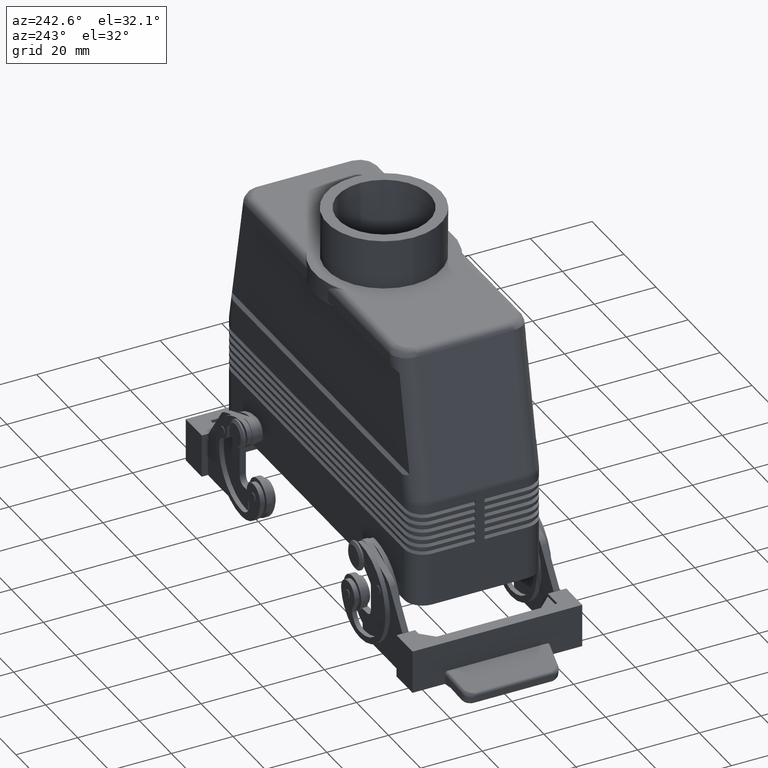
[diagram: clean part render]
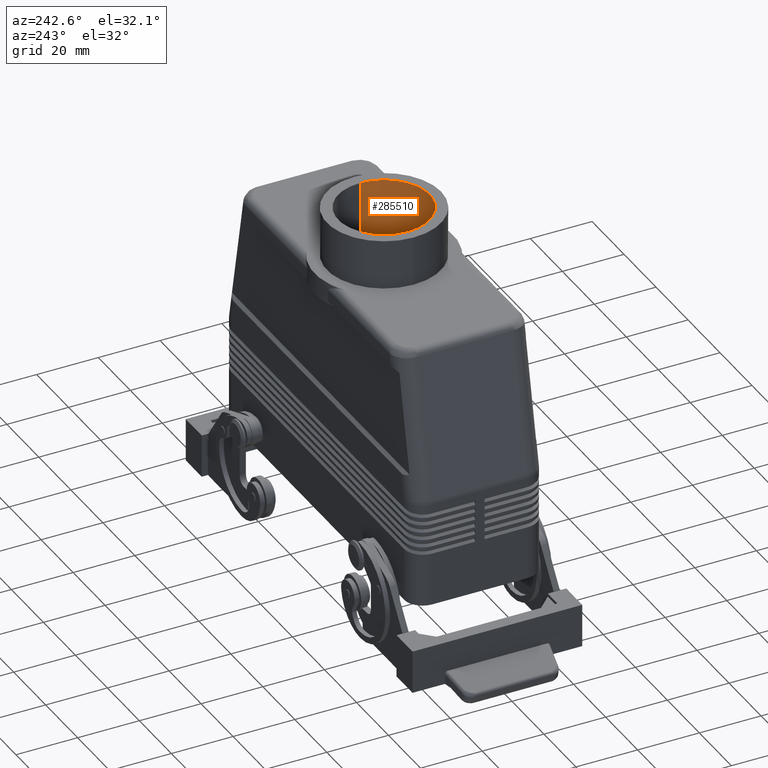
[diagram: same view with one face highlighted and labeled with its STEP entity id]
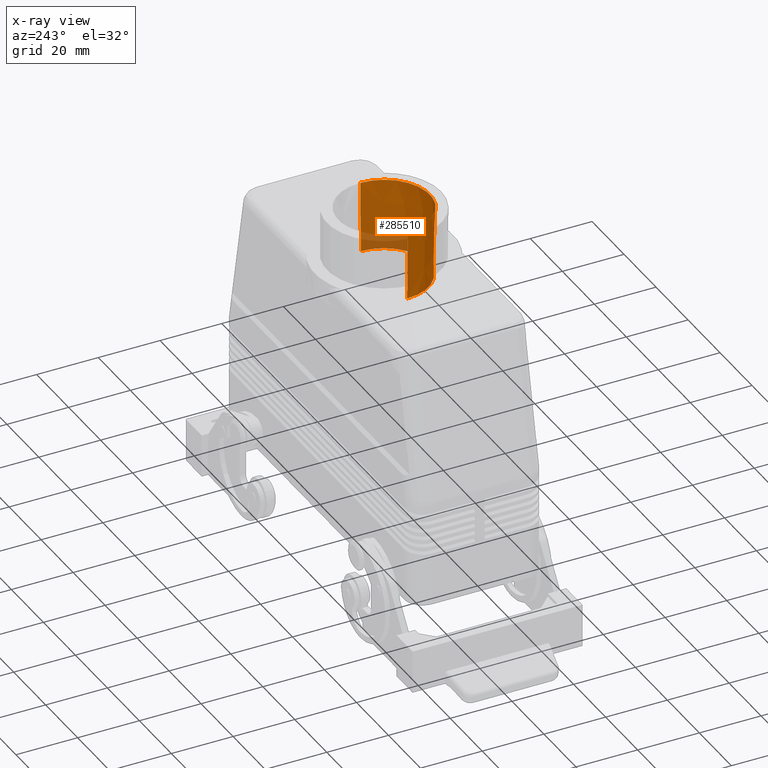
[diagram: x-ray of the same camera — body ghosted, the highlighted face saturated]
A machine part, auxiliary view. The second image highlights one B-rep face of the part: STEP entity #285510.
The next image is the same camera in x-ray: the body ghosted, the highlighted face saturated — about 12% of this face is hidden behind the body in this view.
In plain terms, the highlighted conical surface has half-angle 1 deg.
Its self-contained STEP definition (entity closure, byte-faithful):
#88560=CARTESIAN_POINT('',(1.33226762955019E-15,-1.4210854715202E-14,97.
));
#88570=DIRECTION('',(0.,0.,1.));
#88580=DIRECTION('',(1.,0.,0.));
#88590=AXIS2_PLACEMENT_3D('',#88560,#88570,#88580);
#88600=CIRCLE('',#88590,14.85);
#88610=CARTESIAN_POINT('',(14.85,-1.4210854715202E-14,97.));
#88620=VERTEX_POINT('',#88610);
#88630=CARTESIAN_POINT('',(-14.85,-1.23922542184682E-14,97.));
#88640=VERTEX_POINT('',#88630);
#88670=EDGE_CURVE('',#88640,#88620,#88600,.T.);
#91150=CARTESIAN_POINT('',(1.33226762955019E-15,-1.4210854715202E-14,74.
));
#91160=DIRECTION('',(0.,0.,1.));
#91170=DIRECTION('',(1.,0.,0.));
#91180=AXIS2_PLACEMENT_3D('',#91150,#91160,#91170);
#91190=CIRCLE('',#91180,14.448533506651);
#91200=CARTESIAN_POINT('',(14.448533506651,-1.4210854715202E-14,74.));
#91210=VERTEX_POINT('',#91200);
#91220=CARTESIAN_POINT('',(-14.448533506651,-1.24414196840727E-14,74.));
#91230=VERTEX_POINT('',#91220);
#91260=EDGE_CURVE('',#91230,#91210,#91190,.T.);
#285300=CARTESIAN_POINT('',(1.33226762955019E-15,-1.4210854715202E-14,
97.));
#285310=DIRECTION('',(0.,0.,1.));
#285320=DIRECTION('',(1.,0.,0.));
#285330=AXIS2_PLACEMENT_3D('',#285300,#285310,#285320);
#285340=CONICAL_SURFACE('',#285330,14.85,0.0174532925199433);
#285350=CARTESIAN_POINT('',(14.85,-1.4210854715202E-14,97.));
#285360=DIRECTION('',(0.0174524064372835,0.,0.999847695156391));
#285370=VECTOR('',#285360,850.88552420347);
#285380=LINE('',#285350,#285370);
#285390=EDGE_CURVE('',#91210,#88620,#285380,.T.);
#285400=ORIENTED_EDGE('',*,*,#285390,.F.);
#285410=ORIENTED_EDGE('',*,*,#88670,.T.);
#285420=CARTESIAN_POINT('',(-14.85,-1.23922542184682E-14,97.));
#285430=DIRECTION('',(-0.0174524064372835,2.13730336808379E-18,
0.999847695156391));
#285440=VECTOR('',#285430,850.88552420347);
#285450=LINE('',#285420,#285440);
#285460=EDGE_CURVE('',#91230,#88640,#285450,.T.);
#285470=ORIENTED_EDGE('',*,*,#285460,.T.);
#285480=ORIENTED_EDGE('',*,*,#91260,.F.);
#285490=EDGE_LOOP('',(#285480,#285470,#285410,#285400));
#285500=FACE_OUTER_BOUND('',#285490,.T.);
#285510=ADVANCED_FACE('',(#285500),#285340,.F.);